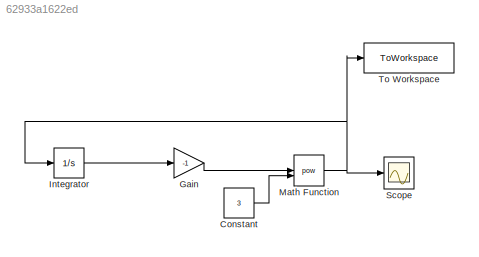
MODEL slx_62933a1622ed
KIND model
CONFIG AbsTol = auto
CONFIG EnableMultiTasking = off
CONFIG FixedStep = auto
CONFIG MaxStep = auto
CONFIG MinStep = auto
CONFIG RelTol = 1e-3
CONFIG SampleTimeConstraint = Unconstrained
CONFIG SolverName = VariableStepAuto
CONFIG StartTime = 0.0
CONFIG StopTime = 100.0
BLOCK [Constant] Constant
  Value = 3
BLOCK [Gain] Gain
  Gain = -1
BLOCK [Integrator] Integrator
  InitialCondition = x0
BLOCK [Math] Math Function
  Operator = pow
  OutputSignalType = real
BLOCK [Scope] Scope
  Floating = off
  NumInputPorts = 1
  ScopeSpecificationString = Simulink.scopes.TimeScopeBlockCfg('CurrentConfiguration', extmgr.ConfigurationSet(extmgr.Configuration('Core','General UI',true),extmgr.Configuration('Core','Source UI',true),extmgr.Configuration('Sources','WiredSimulink',true),extmgr.Configuration('Visuals','Time Domain',true,'SerializedDisplays',{struct('MinYLimReal','-1.12496','MaxYLimReal','0.12461','YLabelReal','','MinYLimMag','0.00000','MaxY...<+1452ch>
BLOCK [ToWorkspace] To Workspace
  FixptAsFi = on
  MaxDataPoints = inf
  SampleTime = -1
  VariableName = simout
LINE Constant:1 -> Math Function:2
LINE Gain:1 -> Math Function:1
LINE Integrator:1 -> Gain:1
NET Math Function:1 -> Integrator:1, Scope:1, To Workspace:1
note: NET lines group one-source signal fan-out (src -> all destinations, sorted); 1:1 wires keep LINE
